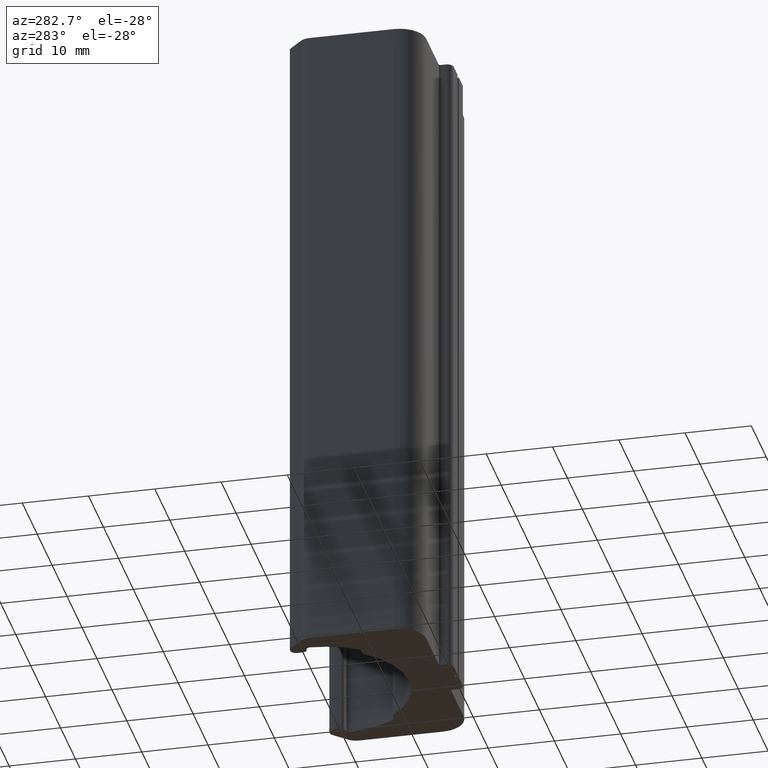
[diagram: clean part render]
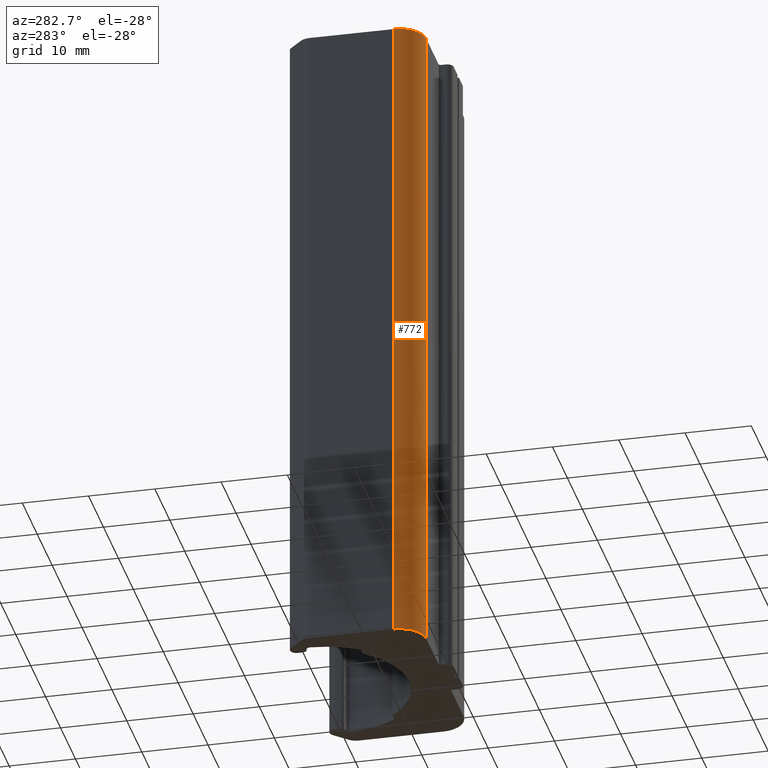
[diagram: same view with one face highlighted and labeled with its STEP entity id]
A machine part, auxiliary view. The second image highlights one B-rep face of the part: STEP entity #772.
In plain terms, the highlighted cylindrical surface (edge-blend (fillet) strip) has radius 4 mm, axis along (0, 0, 1).
Its self-contained STEP definition (entity closure, byte-faithful):
#35=CYLINDRICAL_SURFACE('',#856,4.);
#72=FACE_OUTER_BOUND('',#112,.T.);
#112=EDGE_LOOP('',(#665,#666,#667,#668));
#137=CIRCLE('',#800,4.);
#159=CIRCLE('',#857,4.);
#225=LINE('',#1318,#295);
#226=LINE('',#1322,#296);
#295=VECTOR('',#1083,100.);
#296=VECTOR('',#1088,100.);
#336=VERTEX_POINT('',#1174);
#337=VERTEX_POINT('',#1176);
#373=VERTEX_POINT('',#1316);
#374=VERTEX_POINT('',#1320);
#412=EDGE_CURVE('',#336,#337,#137,.T.);
#483=EDGE_CURVE('',#336,#373,#225,.T.);
#484=EDGE_CURVE('',#374,#373,#159,.T.);
#485=EDGE_CURVE('',#337,#374,#226,.T.);
#665=ORIENTED_EDGE('',*,*,#483,.T.);
#666=ORIENTED_EDGE('',*,*,#484,.F.);
#667=ORIENTED_EDGE('',*,*,#485,.F.);
#668=ORIENTED_EDGE('',*,*,#412,.F.);
#772=ADVANCED_FACE('',(#72),#35,.T.);
#800=AXIS2_PLACEMENT_3D('',#1177,#922,#923);
#856=AXIS2_PLACEMENT_3D('',#1319,#1084,#1085);
#857=AXIS2_PLACEMENT_3D('',#1321,#1086,#1087);
#922=DIRECTION('center_axis',(0.,0.,-1.));
#923=DIRECTION('ref_axis',(-1.,0.,0.));
#1083=DIRECTION('',(0.,0.,1.));
#1084=DIRECTION('center_axis',(0.,0.,1.));
#1085=DIRECTION('ref_axis',(-1.,0.,0.));
#1086=DIRECTION('center_axis',(0.,0.,1.));
#1087=DIRECTION('ref_axis',(-1.,0.,0.));
#1088=DIRECTION('',(0.,0.,1.));
#1174=CARTESIAN_POINT('',(-12.5,-18.0000000000001,-50.));
#1176=CARTESIAN_POINT('',(-16.5,-14.0000000000001,-50.));
#1177=CARTESIAN_POINT('Origin',(-12.5,-14.0000000000001,-50.));
#1316=CARTESIAN_POINT('',(-12.5,-18.0000000000001,50.));
#1318=CARTESIAN_POINT('',(-12.5,-18.0000000000001,0.));
#1319=CARTESIAN_POINT('Origin',(-12.5,-14.0000000000001,0.));
#1320=CARTESIAN_POINT('',(-16.5,-14.0000000000001,50.));
#1321=CARTESIAN_POINT('Origin',(-12.5,-14.0000000000001,50.));
#1322=CARTESIAN_POINT('',(-16.5,-14.0000000000001,0.));